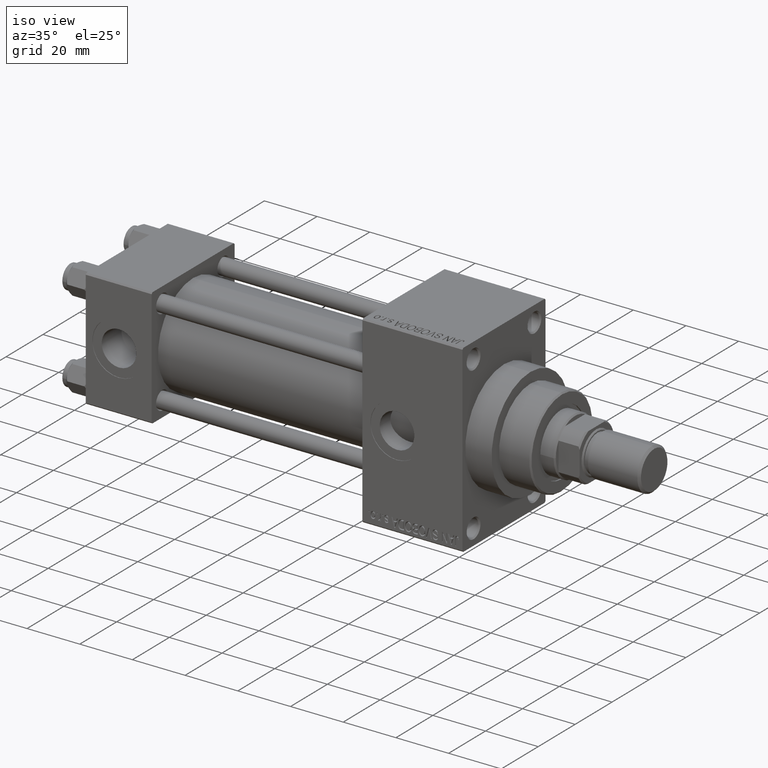
[diagram: clean part render]
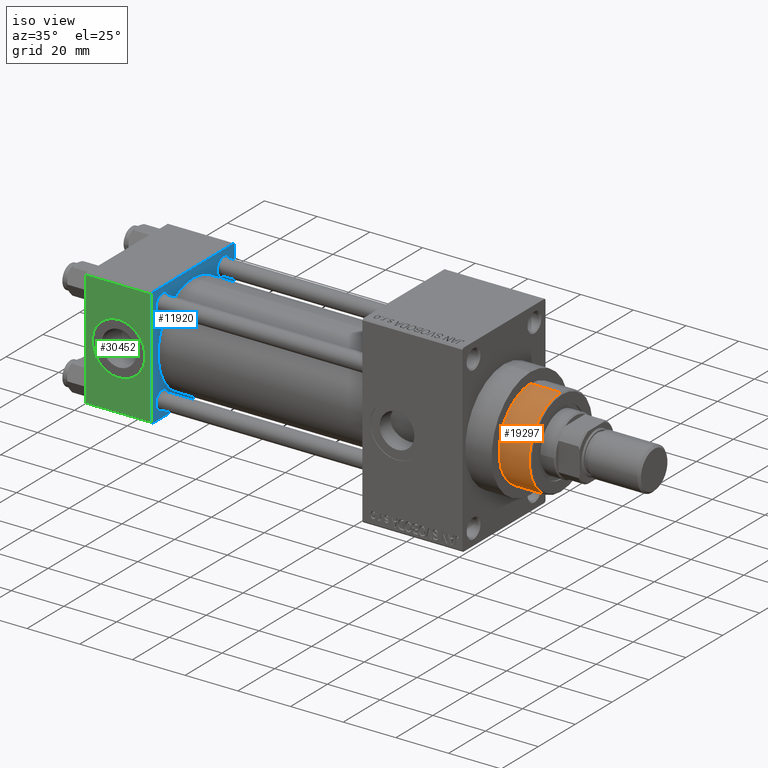
[diagram: same view with three faces highlighted in distinct colors, each labeled with its STEP entity id]
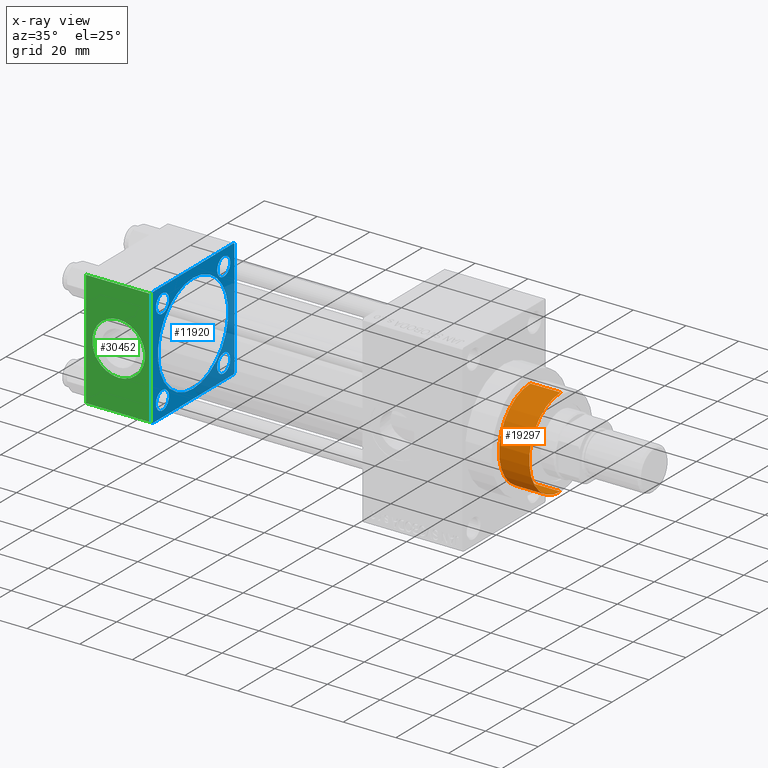
[diagram: x-ray of the same camera — body ghosted, the three highlighted faces saturated]
A machine part, iso view with three faces highlighted in distinct colors.
The next image is the same camera in x-ray (body ghosted, the three faces saturated) — at least one of them is partly hidden behind the body in this view.
Their STEP definitions:

[orange] entity #19297 — the highlighted cylindrical surface (partial cylindrical patch) has radius 17 mm, axis along (-1, 0, 0).
#369 = EDGE_LOOP ( 'NONE', ( #24213, #34918, #15064, #43742 ) ) ;
#780 = LINE ( 'NONE', #31085, #38591 ) ;
#1109 = CARTESIAN_POINT ( 'NONE',  ( -17.00000000000000000, 0.000000000000000000, 54.76000000000001222 ) ) ;
#1293 = DIRECTION ( 'NONE',  ( -0.000000000000000000, -0.000000000000000000, -1.000000000000000000 ) ) ;
#4982 = DIRECTION ( 'NONE',  ( 1.000000000000000000, 0.000000000000000000, 0.000000000000000000 ) ) ;
#7164 = DIRECTION ( 'NONE',  ( -0.000000000000000000, -0.000000000000000000, -1.000000000000000000 ) ) ;
#7424 = LINE ( 'NONE', #38457, #11247 ) ;
#8073 = DIRECTION ( 'NONE',  ( -0.000000000000000000, -0.000000000000000000, -1.000000000000000000 ) ) ;
#8087 = CYLINDRICAL_SURFACE ( 'NONE', #34621, 17.00000000000000000 ) ;
#11247 = VECTOR ( 'NONE', #7164, 1000.000000000000000 ) ;
#12567 = FACE_OUTER_BOUND ( 'NONE', #369, .T. ) ;
#15064 = ORIENTED_EDGE ( 'NONE', *, *, #25718, .T. ) ;
#16065 = CIRCLE ( 'NONE', #39275, 17.00000000000000000 ) ;
#17975 = CARTESIAN_POINT ( 'NONE',  ( 17.00000000000000000, 2.081899558550500280E-15, 54.76000000000001222 ) ) ;
#18066 = CARTESIAN_POINT ( 'NONE',  ( 17.00000000000000000, 2.081899558550500280E-15, 43.25999999999999801 ) ) ;
#18634 = VERTEX_POINT ( 'NONE', #17975 ) ;
#19297 = ADVANCED_FACE ( 'NONE', ( #12567 ), #8087, .T. ) ;
#21930 = VERTEX_POINT ( 'NONE', #1109 ) ;
#23743 = CARTESIAN_POINT ( 'NONE',  ( 0.000000000000000000, 0.000000000000000000, 54.76000000000001222 ) ) ;
#24213 = ORIENTED_EDGE ( 'NONE', *, *, #41945, .T. ) ;
#24532 = VERTEX_POINT ( 'NONE', #18066 ) ;
#25718 = EDGE_CURVE ( 'NONE', #24532, #37212, #16065, .T. ) ;
#26905 = AXIS2_PLACEMENT_3D ( 'NONE', #23743, #39041, #4982 ) ;
#31085 = CARTESIAN_POINT ( 'NONE',  ( -17.00000000000000000, 0.000000000000000000, 55.26000000000000512 ) ) ;
#31537 = CARTESIAN_POINT ( 'NONE',  ( 0.000000000000000000, 0.000000000000000000, 43.25999999999999801 ) ) ;
#31969 = EDGE_CURVE ( 'NONE', #21930, #37212, #780, .T. ) ;
#34621 = AXIS2_PLACEMENT_3D ( 'NONE', #35107, #1293, #42881 ) ;
#34918 = ORIENTED_EDGE ( 'NONE', *, *, #49137, .T. ) ;
#35107 = CARTESIAN_POINT ( 'NONE',  ( 0.000000000000000000, 0.000000000000000000, 55.26000000000000512 ) ) ;
#37212 = VERTEX_POINT ( 'NONE', #41228 ) ;
#38457 = CARTESIAN_POINT ( 'NONE',  ( 17.00000000000000000, 2.081899558550500280E-15, 55.26000000000000512 ) ) ;
#38591 = VECTOR ( 'NONE', #8073, 1000.000000000000000 ) ;
#39041 = DIRECTION ( 'NONE',  ( 0.000000000000000000, 0.000000000000000000, -1.000000000000000000 ) ) ;
#39275 = AXIS2_PLACEMENT_3D ( 'NONE', #31537, #43069, #43318 ) ;
#41228 = CARTESIAN_POINT ( 'NONE',  ( -17.00000000000000000, 0.000000000000000000, 43.25999999999999801 ) ) ;
#41945 = EDGE_CURVE ( 'NONE', #21930, #18634, #48526, .T. ) ;
#42881 = DIRECTION ( 'NONE',  ( -1.000000000000000000, 0.000000000000000000, 0.000000000000000000 ) ) ;
#43069 = DIRECTION ( 'NONE',  ( 0.000000000000000000, 0.000000000000000000, 1.000000000000000000 ) ) ;
#43318 = DIRECTION ( 'NONE',  ( 1.000000000000000000, 0.000000000000000000, 0.000000000000000000 ) ) ;
#43742 = ORIENTED_EDGE ( 'NONE', *, *, #31969, .F. ) ;
#48526 = CIRCLE ( 'NONE', #26905, 17.00000000000000000 ) ;
#49137 = EDGE_CURVE ( 'NONE', #18634, #24532, #7424, .T. ) ;

[blue] entity #11920 — the highlighted planar face has unit normal (-1, 0, 0).
#396 = VERTEX_POINT ( 'NONE', #11821 ) ;
#397 = LINE ( 'NONE', #15184, #7292 ) ;
#552 = CIRCLE ( 'NONE', #42935, 3.499999999999975131 ) ;
#871 = EDGE_CURVE ( 'NONE', #30317, #12981, #34206, .T. ) ;
#1881 = CIRCLE ( 'NONE', #16283, 3.499999999999989342 ) ;
#2288 = EDGE_CURVE ( 'NONE', #40600, #39769, #552, .T. ) ;
#2599 = CARTESIAN_POINT ( 'NONE',  ( 25.00000000000000000, 16.59999999999999787, 13.09999999999997300 ) ) ;
#2865 = EDGE_CURVE ( 'NONE', #41371, #35115, #23971, .T. ) ;
#3112 = LINE ( 'NONE', #34160, #20408 ) ;
#3515 = CIRCLE ( 'NONE', #34719, 3.499999999999978684 ) ;
#3713 = EDGE_CURVE ( 'NONE', #39459, #7652, #30190, .T. ) ;
#3957 = AXIS2_PLACEMENT_3D ( 'NONE', #41263, #44774, #7467 ) ;
#4351 = CARTESIAN_POINT ( 'NONE',  ( 25.00000000000000000, 21.99999999999999289, 22.50000000000000355 ) ) ;
#4437 = CARTESIAN_POINT ( 'NONE',  ( 25.00000000000000000, 16.59999999999999787, 16.60000000000000497 ) ) ;
#4460 = FACE_BOUND ( 'NONE', #22634, .T. ) ;
#4913 = DIRECTION ( 'NONE',  ( 0.000000000000000000, 0.000000000000000000, -1.000000000000000000 ) ) ;
#5661 = LINE ( 'NONE', #23926, #37874 ) ;
#5743 = CARTESIAN_POINT ( 'NONE',  ( 25.00000000000000000, 21.99999999999999289, -22.49999999999999645 ) ) ;
#6466 = DIRECTION ( 'NONE',  ( 0.000000000000000000, 0.000000000000000000, 1.000000000000000000 ) ) ;
#6666 = VERTEX_POINT ( 'NONE', #35084 ) ;
#6891 = CARTESIAN_POINT ( 'NONE',  ( 25.00000000000000000, -21.99999999999997868, 22.50000000000000000 ) ) ;
#7027 = DIRECTION ( 'NONE',  ( -0.000000000000000000, -0.7071067811865525687, -0.7071067811865425767 ) ) ;
#7292 = VECTOR ( 'NONE', #30448, 1000.000000000000000 ) ;
#7467 = DIRECTION ( 'NONE',  ( 0.000000000000000000, 0.000000000000000000, 1.000000000000000000 ) ) ;
#7652 = VERTEX_POINT ( 'NONE', #24364 ) ;
#7953 = CARTESIAN_POINT ( 'NONE',  ( 25.00000000000000000, 16.59999999999999787, -20.09999999999999432 ) ) ;
#8137 = CARTESIAN_POINT ( 'NONE',  ( 25.00000000000000000, -22.50000000000000000, -21.99999999999997158 ) ) ;
#8193 = EDGE_CURVE ( 'NONE', #12981, #30317, #15968, .T. ) ;
#8624 = CIRCLE ( 'NONE', #36605, 3.499999999999989342 ) ;
#8725 = FACE_BOUND ( 'NONE', #11203, .T. ) ;
#9463 = PLANE ( 'NONE',  #35271 ) ;
#9565 = CARTESIAN_POINT ( 'NONE',  ( 25.00000000000000000, -16.59999999999999076, -16.60000000000000853 ) ) ;
#9703 = DIRECTION ( 'NONE',  ( -1.000000000000000000, 0.000000000000000000, -0.000000000000000000 ) ) ;
#9712 = CARTESIAN_POINT ( 'NONE',  ( 25.00000000000000000, 16.59999999999999787, 20.10000000000003340 ) ) ;
#10667 = EDGE_LOOP ( 'NONE', ( #45312, #15258 ) ) ;
#10864 = DIRECTION ( 'NONE',  ( 0.000000000000000000, 0.000000000000000000, -1.000000000000000000 ) ) ;
#11061 = LINE ( 'NONE', #45381, #14533 ) ;
#11203 = EDGE_LOOP ( 'NONE', ( #48887, #20757 ) ) ;
#11252 = DIRECTION ( 'NONE',  ( 0.000000000000000000, 0.000000000000000000, 1.000000000000000000 ) ) ;
#11507 = CARTESIAN_POINT ( 'NONE',  ( 25.00000000000000000, -16.59999999999999076, 20.09999999999998721 ) ) ;
#11632 = EDGE_CURVE ( 'NONE', #7652, #39459, #43289, .T. ) ;
#11821 = CARTESIAN_POINT ( 'NONE',  ( 25.00000000000000000, 22.50000000000000000, 21.99999999999999645 ) ) ;
#11920 = ADVANCED_FACE ( 'NONE', ( #4460, #8725, #28972, #32738, #40263, #39272 ), #9463, .F. ) ;
#12204 = EDGE_CURVE ( 'NONE', #42274, #24282, #397, .T. ) ;
#12337 = ORIENTED_EDGE ( 'NONE', *, *, #21138, .T. ) ;
#12604 = CARTESIAN_POINT ( 'NONE',  ( 24.99999999999999289, -2.752562955852396712E-16, -19.00000000000000000 ) ) ;
#12758 = ORIENTED_EDGE ( 'NONE', *, *, #2865, .T. ) ;
#12978 = EDGE_CURVE ( 'NONE', #39769, #40600, #25697, .T. ) ;
#12981 = VERTEX_POINT ( 'NONE', #9712 ) ;
#13243 = CARTESIAN_POINT ( 'NONE',  ( 24.99999999999999289, -2.602085213965210642E-15, 0.000000000000000000 ) ) ;
#13520 = DIRECTION ( 'NONE',  ( 0.000000000000000000, 0.000000000000000000, 1.000000000000000000 ) ) ;
#14188 = VECTOR ( 'NONE', #21447, 1000.000000000000000 ) ;
#14533 = VECTOR ( 'NONE', #29109, 1000.000000000000000 ) ;
#14827 = CARTESIAN_POINT ( 'NONE',  ( 25.00000000000000000, -16.59999999999999076, 13.10000000000002807 ) ) ;
#15184 = CARTESIAN_POINT ( 'NONE',  ( 25.00000000000000000, 22.50000000000000000, -21.99999999999998224 ) ) ;
#15258 = ORIENTED_EDGE ( 'NONE', *, *, #3713, .F. ) ;
#15797 = AXIS2_PLACEMENT_3D ( 'NONE', #4437, #19699, #15956 ) ;
#15956 = DIRECTION ( 'NONE',  ( 0.000000000000000000, 0.000000000000000000, 1.000000000000000000 ) ) ;
#15968 = CIRCLE ( 'NONE', #3957, 3.500000000000031086 ) ;
#16283 = AXIS2_PLACEMENT_3D ( 'NONE', #27567, #47114, #27070 ) ;
#16750 = CARTESIAN_POINT ( 'NONE',  ( 25.00000000000000000, 16.59999999999999787, -16.60000000000000497 ) ) ;
#17104 = EDGE_CURVE ( 'NONE', #36264, #28161, #11061, .T. ) ;
#17355 = VECTOR ( 'NONE', #39268, 1000.000000000000000 ) ;
#17436 = VERTEX_POINT ( 'NONE', #11507 ) ;
#18284 = ORIENTED_EDGE ( 'NONE', *, *, #36069, .T. ) ;
#19592 = ORIENTED_EDGE ( 'NONE', *, *, #8193, .T. ) ;
#19699 = DIRECTION ( 'NONE',  ( -1.000000000000000000, 0.000000000000000000, -0.000000000000000000 ) ) ;
#20325 = EDGE_LOOP ( 'NONE', ( #26605, #19592 ) ) ;
#20408 = VECTOR ( 'NONE', #10864, 1000.000000000000000 ) ;
#20648 = ORIENTED_EDGE ( 'NONE', *, *, #35031, .F. ) ;
#20713 = DIRECTION ( 'NONE',  ( -0.000000000000000000, 0.000000000000000000, 1.000000000000000000 ) ) ;
#20757 = ORIENTED_EDGE ( 'NONE', *, *, #30999, .T. ) ;
#20847 = AXIS2_PLACEMENT_3D ( 'NONE', #43587, #24772, #13520 ) ;
#21063 = EDGE_LOOP ( 'NONE', ( #37395, #46663, #20648, #45916, #12758, #12337, #22921, #32613 ) ) ;
#21138 = EDGE_CURVE ( 'NONE', #35115, #6666, #23032, .T. ) ;
#21447 = DIRECTION ( 'NONE',  ( 0.000000000000000000, -1.000000000000000000, -2.312964634635742957E-16 ) ) ;
#21552 = VERTEX_POINT ( 'NONE', #7953 ) ;
#22634 = EDGE_LOOP ( 'NONE', ( #33541, #31237 ) ) ;
#22921 = ORIENTED_EDGE ( 'NONE', *, *, #39206, .T. ) ;
#22971 = AXIS2_PLACEMENT_3D ( 'NONE', #13243, #24744, #6466 ) ;
#23023 = DIRECTION ( 'NONE',  ( -1.000000000000000000, 0.000000000000000000, -0.000000000000000000 ) ) ;
#23032 = LINE ( 'NONE', #46079, #45070 ) ;
#23112 = ORIENTED_EDGE ( 'NONE', *, *, #33840, .T. ) ;
#23448 = AXIS2_PLACEMENT_3D ( 'NONE', #38181, #29659, #44951 ) ;
#23855 = DIRECTION ( 'NONE',  ( 0.000000000000000000, -0.7071067811865474617, 0.7071067811865474617 ) ) ;
#23926 = CARTESIAN_POINT ( 'NONE',  ( 25.00000000000000000, 22.50000000000000000, 22.50000000000000355 ) ) ;
#23971 = LINE ( 'NONE', #35752, #17355 ) ;
#24282 = VERTEX_POINT ( 'NONE', #46176 ) ;
#24364 = CARTESIAN_POINT ( 'NONE',  ( 24.99999999999999289, -2.602085213965210642E-15, 19.00000000000000000 ) ) ;
#24744 = DIRECTION ( 'NONE',  ( 1.000000000000000000, -0.000000000000000000, 0.000000000000000000 ) ) ;
#24772 = DIRECTION ( 'NONE',  ( 1.000000000000000000, -0.000000000000000000, 0.000000000000000000 ) ) ;
#25697 = CIRCLE ( 'NONE', #40101, 3.499999999999975131 ) ;
#26605 = ORIENTED_EDGE ( 'NONE', *, *, #871, .T. ) ;
#27070 = DIRECTION ( 'NONE',  ( 0.000000000000000000, 0.000000000000000000, 1.000000000000000000 ) ) ;
#27199 = EDGE_LOOP ( 'NONE', ( #18284, #23112 ) ) ;
#27567 = CARTESIAN_POINT ( 'NONE',  ( 25.00000000000000000, 16.59999999999999787, -16.60000000000000497 ) ) ;
#28161 = VERTEX_POINT ( 'NONE', #31901 ) ;
#28964 = LINE ( 'NONE', #36731, #14188 ) ;
#28972 = FACE_BOUND ( 'NONE', #27199, .T. ) ;
#29109 = DIRECTION ( 'NONE',  ( 0.000000000000000000, 0.7071067811865426878, -0.7071067811865524577 ) ) ;
#29590 = CARTESIAN_POINT ( 'NONE',  ( 25.00000000000000000, 21.99999999999999289, 22.50000000000000355 ) ) ;
#29659 = DIRECTION ( 'NONE',  ( -1.000000000000000000, 0.000000000000000000, -0.000000000000000000 ) ) ;
#30190 = CIRCLE ( 'NONE', #22971, 19.00000000000000000 ) ;
#30317 = VERTEX_POINT ( 'NONE', #2599 ) ;
#30448 = DIRECTION ( 'NONE',  ( -0.000000000000000000, 0.7071067811865426878, 0.7071067811865524577 ) ) ;
#30999 = EDGE_CURVE ( 'NONE', #39751, #21552, #1881, .T. ) ;
#31237 = ORIENTED_EDGE ( 'NONE', *, *, #2288, .T. ) ;
#31901 = CARTESIAN_POINT ( 'NONE',  ( 25.00000000000000000, -21.99999999999997158, -22.50000000000000711 ) ) ;
#32285 = DIRECTION ( 'NONE',  ( 0.000000000000000000, 0.000000000000000000, 1.000000000000000000 ) ) ;
#32605 = DIRECTION ( 'NONE',  ( 0.000000000000000000, 0.000000000000000000, 1.000000000000000000 ) ) ;
#32613 = ORIENTED_EDGE ( 'NONE', *, *, #17104, .T. ) ;
#32738 = FACE_BOUND ( 'NONE', #20325, .T. ) ;
#33541 = ORIENTED_EDGE ( 'NONE', *, *, #12978, .T. ) ;
#33840 = EDGE_CURVE ( 'NONE', #17436, #48172, #41847, .T. ) ;
#34160 = CARTESIAN_POINT ( 'NONE',  ( 25.00000000000000000, -22.50000000000000000, 22.50000000000000000 ) ) ;
#34206 = CIRCLE ( 'NONE', #15797, 3.500000000000031086 ) ;
#34719 = AXIS2_PLACEMENT_3D ( 'NONE', #38067, #23023, #11252 ) ;
#35031 = EDGE_CURVE ( 'NONE', #396, #24282, #5661, .T. ) ;
#35084 = CARTESIAN_POINT ( 'NONE',  ( 25.00000000000000000, -22.50000000000000000, 22.00000000000000000 ) ) ;
#35115 = VERTEX_POINT ( 'NONE', #6891 ) ;
#35271 = AXIS2_PLACEMENT_3D ( 'NONE', #43778, #9703, #20713 ) ;
#35639 = LINE ( 'NONE', #4351, #49277 ) ;
#35752 = CARTESIAN_POINT ( 'NONE',  ( 25.00000000000000000, 22.50000000000000000, 22.50000000000000355 ) ) ;
#36069 = EDGE_CURVE ( 'NONE', #48172, #17436, #3515, .T. ) ;
#36264 = VERTEX_POINT ( 'NONE', #8137 ) ;
#36605 = AXIS2_PLACEMENT_3D ( 'NONE', #16750, #47817, #32285 ) ;
#36731 = CARTESIAN_POINT ( 'NONE',  ( 25.00000000000000000, 22.50000000000000000, -22.49999999999999645 ) ) ;
#37110 = CARTESIAN_POINT ( 'NONE',  ( 25.00000000000000000, 16.59999999999999787, -13.10000000000001386 ) ) ;
#37117 = CARTESIAN_POINT ( 'NONE',  ( 25.00000000000000000, -16.59999999999999076, -13.10000000000003162 ) ) ;
#37395 = ORIENTED_EDGE ( 'NONE', *, *, #44432, .F. ) ;
#37874 = VECTOR ( 'NONE', #4913, 1000.000000000000000 ) ;
#38067 = CARTESIAN_POINT ( 'NONE',  ( 25.00000000000000000, -16.59999999999999076, 16.60000000000000853 ) ) ;
#38105 = CARTESIAN_POINT ( 'NONE',  ( 25.00000000000000000, -16.59999999999999076, -20.09999999999998366 ) ) ;
#38181 = CARTESIAN_POINT ( 'NONE',  ( 25.00000000000000000, -16.59999999999999076, 16.60000000000000853 ) ) ;
#39206 = EDGE_CURVE ( 'NONE', #6666, #36264, #3112, .T. ) ;
#39268 = DIRECTION ( 'NONE',  ( 0.000000000000000000, -1.000000000000000000, -7.709882115452476934E-17 ) ) ;
#39272 = FACE_OUTER_BOUND ( 'NONE', #21063, .T. ) ;
#39459 = VERTEX_POINT ( 'NONE', #12604 ) ;
#39751 = VERTEX_POINT ( 'NONE', #37110 ) ;
#39769 = VERTEX_POINT ( 'NONE', #38105 ) ;
#40101 = AXIS2_PLACEMENT_3D ( 'NONE', #47789, #47290, #44030 ) ;
#40263 = FACE_BOUND ( 'NONE', #10667, .T. ) ;
#40472 = EDGE_CURVE ( 'NONE', #396, #41371, #35639, .T. ) ;
#40600 = VERTEX_POINT ( 'NONE', #37117 ) ;
#40608 = DIRECTION ( 'NONE',  ( -1.000000000000000000, 0.000000000000000000, -0.000000000000000000 ) ) ;
#41263 = CARTESIAN_POINT ( 'NONE',  ( 25.00000000000000000, 16.59999999999999787, 16.60000000000000497 ) ) ;
#41371 = VERTEX_POINT ( 'NONE', #29590 ) ;
#41847 = CIRCLE ( 'NONE', #23448, 3.499999999999978684 ) ;
#42274 = VERTEX_POINT ( 'NONE', #5743 ) ;
#42935 = AXIS2_PLACEMENT_3D ( 'NONE', #9565, #40608, #32605 ) ;
#43289 = CIRCLE ( 'NONE', #20847, 19.00000000000000000 ) ;
#43587 = CARTESIAN_POINT ( 'NONE',  ( 24.99999999999999289, -2.602085213965210642E-15, 0.000000000000000000 ) ) ;
#43778 = CARTESIAN_POINT ( 'NONE',  ( 25.00000000000000000, 0.000000000000000000, 0.000000000000000000 ) ) ;
#44030 = DIRECTION ( 'NONE',  ( 0.000000000000000000, 0.000000000000000000, 1.000000000000000000 ) ) ;
#44432 = EDGE_CURVE ( 'NONE', #42274, #28161, #28964, .T. ) ;
#44774 = DIRECTION ( 'NONE',  ( -1.000000000000000000, 0.000000000000000000, -0.000000000000000000 ) ) ;
#44951 = DIRECTION ( 'NONE',  ( 0.000000000000000000, 0.000000000000000000, 1.000000000000000000 ) ) ;
#45070 = VECTOR ( 'NONE', #7027, 999.9999999999998863 ) ;
#45312 = ORIENTED_EDGE ( 'NONE', *, *, #11632, .F. ) ;
#45381 = CARTESIAN_POINT ( 'NONE',  ( 25.00000000000000000, -21.99999999999998579, -22.50000000000000711 ) ) ;
#45916 = ORIENTED_EDGE ( 'NONE', *, *, #40472, .T. ) ;
#46079 = CARTESIAN_POINT ( 'NONE',  ( 25.00000000000000000, -22.50000000000000000, 22.00000000000000000 ) ) ;
#46176 = CARTESIAN_POINT ( 'NONE',  ( 25.00000000000000000, 22.50000000000000000, -21.99999999999996803 ) ) ;
#46663 = ORIENTED_EDGE ( 'NONE', *, *, #12204, .T. ) ;
#47114 = DIRECTION ( 'NONE',  ( -1.000000000000000000, 0.000000000000000000, -0.000000000000000000 ) ) ;
#47290 = DIRECTION ( 'NONE',  ( -1.000000000000000000, 0.000000000000000000, -0.000000000000000000 ) ) ;
#47658 = EDGE_CURVE ( 'NONE', #21552, #39751, #8624, .T. ) ;
#47789 = CARTESIAN_POINT ( 'NONE',  ( 25.00000000000000000, -16.59999999999999076, -16.60000000000000853 ) ) ;
#47817 = DIRECTION ( 'NONE',  ( -1.000000000000000000, 0.000000000000000000, -0.000000000000000000 ) ) ;
#48172 = VERTEX_POINT ( 'NONE', #14827 ) ;
#48887 = ORIENTED_EDGE ( 'NONE', *, *, #47658, .T. ) ;
#49277 = VECTOR ( 'NONE', #23855, 1000.000000000000114 ) ;

[green] entity #30452 — the highlighted planar face has unit normal (0, 1, 0).
#412 = EDGE_CURVE ( 'NONE', #10840, #8481, #7838, .T. ) ;
#2631 = CARTESIAN_POINT ( 'NONE',  ( 0.000000000000000000, -22.50000000000000000, -21.99999999999997158 ) ) ;
#3112 = LINE ( 'NONE', #34160, #20408 ) ;
#3170 = ORIENTED_EDGE ( 'NONE', *, *, #6715, .T. ) ;
#5043 = DIRECTION ( 'NONE',  ( 1.000000000000000000, 0.000000000000000000, 0.000000000000000000 ) ) ;
#5570 = CARTESIAN_POINT ( 'NONE',  ( 12.50000000000000000, -22.50000000000000000, 0.000000000000000000 ) ) ;
#6243 = ORIENTED_EDGE ( 'NONE', *, *, #47489, .T. ) ;
#6666 = VERTEX_POINT ( 'NONE', #35084 ) ;
#6715 = EDGE_CURVE ( 'NONE', #8481, #36264, #27313, .T. ) ;
#6788 = LINE ( 'NONE', #11262, #10177 ) ;
#7431 = AXIS2_PLACEMENT_3D ( 'NONE', #38390, #15601, #27592 ) ;
#7537 = DIRECTION ( 'NONE',  ( -1.000000000000000000, 0.000000000000000000, 0.000000000000000000 ) ) ;
#7838 = LINE ( 'NONE', #45651, #38216 ) ;
#8137 = CARTESIAN_POINT ( 'NONE',  ( 25.00000000000000000, -22.50000000000000000, -21.99999999999997158 ) ) ;
#8175 = CIRCLE ( 'NONE', #40164, 9.999999999999996447 ) ;
#8481 = VERTEX_POINT ( 'NONE', #2631 ) ;
#9128 = ORIENTED_EDGE ( 'NONE', *, *, #27776, .F. ) ;
#10031 = CARTESIAN_POINT ( 'NONE',  ( 0.000000000000000000, -22.50000000000000000, 22.00000000000000000 ) ) ;
#10177 = VECTOR ( 'NONE', #7537, 1000.000000000000000 ) ;
#10492 = CARTESIAN_POINT ( 'NONE',  ( 12.50000000000000000, -22.50000000000000000, -9.999999999999996447 ) ) ;
#10840 = VERTEX_POINT ( 'NONE', #10031 ) ;
#10864 = DIRECTION ( 'NONE',  ( 0.000000000000000000, 0.000000000000000000, -1.000000000000000000 ) ) ;
#11262 = CARTESIAN_POINT ( 'NONE',  ( 25.00000000000000000, -22.50000000000000000, 22.00000000000000000 ) ) ;
#11337 = FACE_BOUND ( 'NONE', #28025, .T. ) ;
#15350 = DIRECTION ( 'NONE',  ( 0.000000000000000000, 0.000000000000000000, -1.000000000000000000 ) ) ;
#15386 = EDGE_CURVE ( 'NONE', #23457, #17930, #29639, .T. ) ;
#15601 = DIRECTION ( 'NONE',  ( -0.000000000000000000, 1.000000000000000000, 0.000000000000000000 ) ) ;
#16410 = CARTESIAN_POINT ( 'NONE',  ( 12.50000000000000000, -22.50000000000000000, 0.000000000000000000 ) ) ;
#17930 = VERTEX_POINT ( 'NONE', #28935 ) ;
#18166 = ORIENTED_EDGE ( 'NONE', *, *, #15386, .F. ) ;
#18281 = VECTOR ( 'NONE', #5043, 1000.000000000000000 ) ;
#19905 = DIRECTION ( 'NONE',  ( 0.000000000000000000, -1.000000000000000000, -8.673617379884036705E-17 ) ) ;
#20408 = VECTOR ( 'NONE', #10864, 1000.000000000000000 ) ;
#22783 = ORIENTED_EDGE ( 'NONE', *, *, #412, .T. ) ;
#23099 = PLANE ( 'NONE',  #7431 ) ;
#23457 = VERTEX_POINT ( 'NONE', #10492 ) ;
#27242 = AXIS2_PLACEMENT_3D ( 'NONE', #16410, #19905, #42725 ) ;
#27313 = LINE ( 'NONE', #39353, #18281 ) ;
#27592 = DIRECTION ( 'NONE',  ( 0.000000000000000000, -0.000000000000000000, 1.000000000000000000 ) ) ;
#27776 = EDGE_CURVE ( 'NONE', #17930, #23457, #8175, .T. ) ;
#28025 = EDGE_LOOP ( 'NONE', ( #18166, #9128 ) ) ;
#28935 = CARTESIAN_POINT ( 'NONE',  ( 12.50000000000000178, -22.50000000000000000, 9.999999999999996447 ) ) ;
#29639 = CIRCLE ( 'NONE', #27242, 9.999999999999996447 ) ;
#30452 = ADVANCED_FACE ( 'NONE', ( #11337, #41910 ), #23099, .F. ) ;
#34160 = CARTESIAN_POINT ( 'NONE',  ( 25.00000000000000000, -22.50000000000000000, 22.50000000000000000 ) ) ;
#35084 = CARTESIAN_POINT ( 'NONE',  ( 25.00000000000000000, -22.50000000000000000, 22.00000000000000000 ) ) ;
#35871 = DIRECTION ( 'NONE',  ( 0.000000000000000000, 0.000000000000000000, -1.000000000000000000 ) ) ;
#36264 = VERTEX_POINT ( 'NONE', #8137 ) ;
#37097 = ORIENTED_EDGE ( 'NONE', *, *, #39206, .F. ) ;
#38216 = VECTOR ( 'NONE', #15350, 1000.000000000000000 ) ;
#38390 = CARTESIAN_POINT ( 'NONE',  ( 25.00000000000000000, -22.50000000000000000, 22.50000000000000000 ) ) ;
#39206 = EDGE_CURVE ( 'NONE', #6666, #36264, #3112, .T. ) ;
#39353 = CARTESIAN_POINT ( 'NONE',  ( 25.00000000000000000, -22.50000000000000000, -21.99999999999998579 ) ) ;
#40164 = AXIS2_PLACEMENT_3D ( 'NONE', #5570, #43642, #35871 ) ;
#41910 = FACE_OUTER_BOUND ( 'NONE', #45117, .T. ) ;
#42725 = DIRECTION ( 'NONE',  ( 0.000000000000000000, 0.000000000000000000, -1.000000000000000000 ) ) ;
#43642 = DIRECTION ( 'NONE',  ( 0.000000000000000000, -1.000000000000000000, -8.673617379884036705E-17 ) ) ;
#45117 = EDGE_LOOP ( 'NONE', ( #22783, #3170, #37097, #6243 ) ) ;
#45651 = CARTESIAN_POINT ( 'NONE',  ( 0.000000000000000000, -22.50000000000000000, 22.50000000000000000 ) ) ;
#47489 = EDGE_CURVE ( 'NONE', #6666, #10840, #6788, .T. ) ;